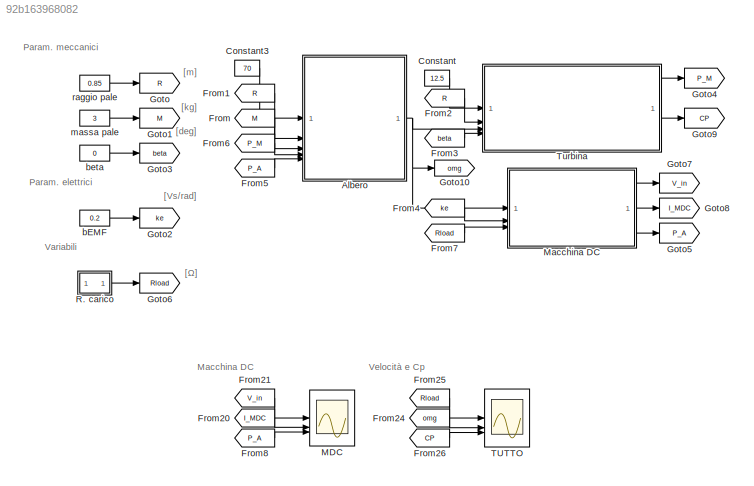
MODEL slx_92b163968082
KIND model
CONFIG AbsTol = auto
CONFIG EnableMultiTasking = off
CONFIG FixedStep = auto
CONFIG MaxStep = auto
CONFIG MinStep = auto
CONFIG RelTol = 1e-3
CONFIG SampleTimeConstraint = Unconstrained
CONFIG SolverName = VariableStepAuto
CONFIG StartTime = 0.0
CONFIG StopTime = 3000
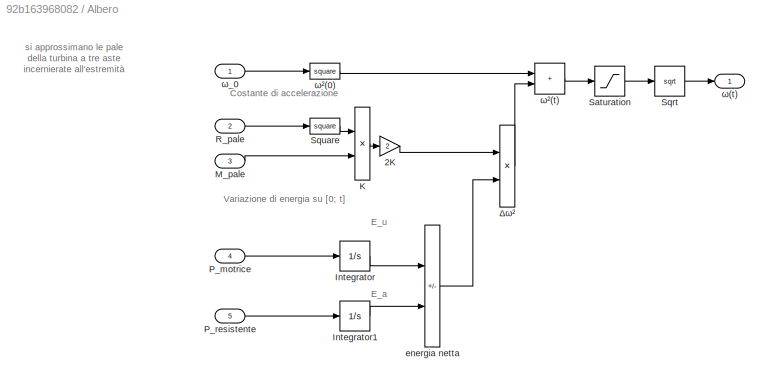
BLOCK [SubSystem] Albero
BLOCK [Gain] Albero/2K
  Gain = 2
BLOCK [Integrator] Albero/Integrator
BLOCK [Integrator] Albero/Integrator1
BLOCK [Product] Albero/K
  Inputs = //
  NameLocation = left
BLOCK [Inport] Albero/M_pale
  Port = 3
  Unit = kg
BLOCK [Inport] Albero/P_motrice
  Port = 4
  Unit = W
BLOCK [Inport] Albero/P_resistente
  Port = 5
  Unit = W
BLOCK [Inport] Albero/R_pale
  Port = 2
  Unit = m
BLOCK [Saturate] Albero/Saturation
  LowerLimit = 0
  UpperLimit = 10e6
BLOCK [Sqrt] Albero/Sqrt
BLOCK [Math] Albero/Square
  Operator = square
BLOCK [Sum] Albero/energia netta
  IconShape = rectangular
  Inputs = +-
BLOCK [Product] Albero/Δω²
BLOCK [Outport] Albero/ω(t)
  Unit = rad/s
BLOCK [Inport] Albero/ω_0
  Unit = rad/s
BLOCK [Math] Albero/ω²(0)
  NameLocation = top
  Operator = square
BLOCK [Sum] Albero/ω²(t)
  IconShape = rectangular
BLOCK [Constant] Constant
  Value = 12.5
BLOCK [Constant] Constant3
  Value = 70
BLOCK [From] From
  GotoTag = M
BLOCK [From] From1
  GotoTag = R
BLOCK [From] From2
  GotoTag = R
BLOCK [From] From20
  GotoTag = I_MDC
  NameLocation = left
BLOCK [From] From21
  GotoTag = V_in
BLOCK [From] From24
  GotoTag = omg
  NameLocation = left
BLOCK [From] From25
  GotoTag = Rload
BLOCK [From] From26
  GotoTag = CP
BLOCK [From] From3
  GotoTag = beta
BLOCK [From] From4
  GotoTag = ke
BLOCK [From] From5
  GotoTag = P_A
BLOCK [From] From6
  GotoTag = P_M
BLOCK [From] From7
  GotoTag = Rload
BLOCK [From] From8
  GotoTag = P_A
BLOCK [Goto] Goto
  GotoTag = R
BLOCK [Goto] Goto1
  GotoTag = M
BLOCK [Goto] Goto10
  GotoTag = omg
BLOCK [Goto] Goto2
  GotoTag = ke
BLOCK [Goto] Goto3
  GotoTag = beta
BLOCK [Goto] Goto4
  GotoTag = P_M
BLOCK [Goto] Goto5
  GotoTag = P_A
BLOCK [Goto] Goto6
  GotoTag = Rload
BLOCK [Goto] Goto7
  GotoTag = V_in
BLOCK [Goto] Goto8
  GotoTag = I_MDC
BLOCK [Goto] Goto9
  GotoTag = CP
BLOCK [Scope] MDC
  Floating = off
  NumInputPorts = 3
  ScopeSpecificationString = Simulink.scopes.TimeScopeBlockCfg('CurrentConfiguration', extmgr.ConfigurationSet(extmgr.Configuration('Core','General UI',true,'FigureColor',[1 1 1]),extmgr.Configuration('Core','Source UI',true),extmgr.Configuration('Sources','WiredSimulink',true,'DataLoggingVariableName','ScopeData1'),extmgr.Configuration('Visuals','Time Domain',true,'TimeAxisLabels','All','SerializedDisplays',{struct('MinYLimR...<+3358ch>
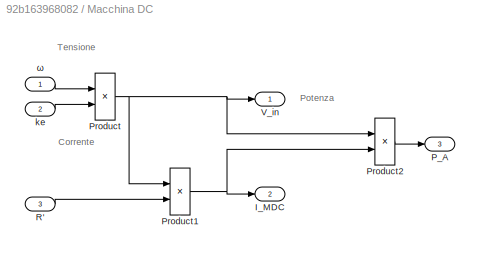
BLOCK [SubSystem] Macchina DC
BLOCK [Outport] Macchina DC/I_MDC
  NameLocation = right
  Port = 2
  Unit = A
BLOCK [Outport] Macchina DC/P_A
  NameLocation = right
  Port = 3
  Unit = W
BLOCK [Product] Macchina DC/Product
BLOCK [Product] Macchina DC/Product1
  Inputs = */
BLOCK [Product] Macchina DC/Product2
BLOCK [Inport] Macchina DC/R'
  NameLocation = left
  Port = 3
BLOCK [Outport] Macchina DC/V_in
  NameLocation = right
  Unit = V
BLOCK [Inport] Macchina DC/ke
  NameLocation = left
  Port = 2
BLOCK [Inport] Macchina DC/ω
  NameLocation = left
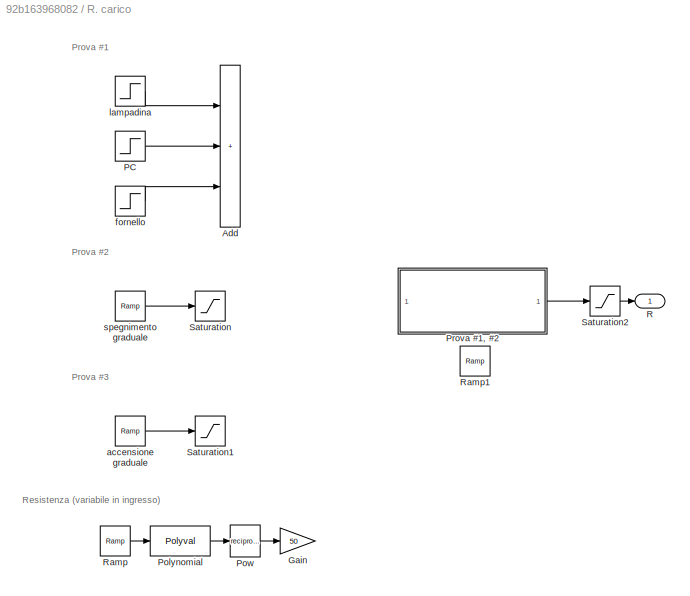
BLOCK [SubSystem] R. carico
BLOCK [Sum] R. carico/Add
  Commented = on
  IconShape = rectangular
  Inputs = +++
BLOCK [Gain] R. carico/Gain
  Commented = on
  Gain = 50
BLOCK [Step] R. carico/PC
  After = 90
  Commented = on
  SampleTime = 0
  Time = 1200
BLOCK [Polyval] R. carico/Polynomial
  Coefs = [10e-4 0 0]
  Commented = on
BLOCK [Math] R. carico/Pow
  Commented = on
  Operator = reciprocal
  RndMeth = Zero
  SignedPower = on
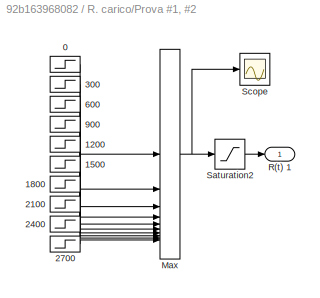
BLOCK [SubSystem] R. carico/Prova #1, #2
  NameLocation = top
BLOCK [Step] R. carico/Prova #1, #2/0
  After = 0
  Before = 1.6
  NameLocation = left
  SampleTime = 0
  Time = 300
BLOCK [Step] R. carico/Prova #1, #2/1200
  After = 0
  Before = 0.6
  NameLocation = left
  SampleTime = 0
  Time = 1500
BLOCK [Step] R. carico/Prova #1, #2/1500
  After = 0
  Before = 0.4
  NameLocation = left
  SampleTime = 0
  Time = 1800
BLOCK [Step] R. carico/Prova #1, #2/1800
  After = 0
  Before = 0.4
  NameLocation = left
  SampleTime = 0
  Time = 2100
BLOCK [Step] R. carico/Prova #1, #2/2100
  After = 0
  Before = 0.2
  NameLocation = left
  SampleTime = 0
  Time = 2400
BLOCK [Step] R. carico/Prova #1, #2/2400
  After = 0
  Before = 0.2
  NameLocation = left
  SampleTime = 0
  Time = 2700
BLOCK [Step] R. carico/Prova #1, #2/2700
  After = 1.6
  NameLocation = left
  SampleTime = 0
  Time = 2700
BLOCK [Step] R. carico/Prova #1, #2/300
  After = 0
  Before = 1.3
  NameLocation = left
  SampleTime = 0
  Time = 600
BLOCK [Step] R. carico/Prova #1, #2/600
  After = 0
  Before = 1
  NameLocation = left
  SampleTime = 0
  Time = 900
BLOCK [Step] R. carico/Prova #1, #2/900
  After = 0
  Before = 0.8
  NameLocation = left
  SampleTime = 0
  Time = 1200
BLOCK [MinMax] R. carico/Prova #1, #2/Max
  Function = max
  Inputs = 10
BLOCK [Outport] R. carico/Prova #1, #2/R(t) 1
BLOCK [Saturate] R. carico/Prova #1, #2/Saturation2
  LowerLimit = 0.15
  UpperLimit = 10e6
BLOCK [Scope] R. carico/Prova #1, #2/Scope
  Floating = off
  NumInputPorts = 1
  ScopeSpecificationString = Simulink.scopes.TimeScopeBlockCfg('CurrentConfiguration', extmgr.ConfigurationSet(extmgr.Configuration('Core','General UI',true),extmgr.Configuration('Core','Source UI',true),extmgr.Configuration('Sources','WiredSimulink',true,'DataLoggingVariableName','ScopeData1'),extmgr.Configuration('Visuals','Time Domain',true,'SerializedDisplays',{struct('MinYLimReal','0.025','MaxYLimReal','1.775','YLabelRea...<+1461ch>
BLOCK [Outport] R. carico/R
  Unit = Ω
BLOCK [Reference] R. carico/Ramp  REF=simulink/Sources/Ramp
  Commented = on
  SourceBlock = simulink/Sources/Ramp
  SourceType = Ramp
BLOCK [Reference] R. carico/Ramp1  REF=simulink/Sources/Ramp
  SourceBlock = simulink/Sources/Ramp
  SourceType = Ramp
BLOCK [Saturate] R. carico/Saturation
  Commented = on
  LowerLimit = 0
  UpperLimit = 1000
BLOCK [Saturate] R. carico/Saturation1
  Commented = on
  LowerLimit = 0
  UpperLimit = 200
BLOCK [Saturate] R. carico/Saturation2
  LowerLimit = 0.15
  UpperLimit = 10e6
BLOCK [Reference] R. carico/accensione graduale  REF=simulink/Sources/Ramp
  Commented = on
  SourceBlock = simulink/Sources/Ramp
  SourceType = Ramp
BLOCK [Step] R. carico/fornello
  After = 900
  Commented = on
  SampleTime = 0
  Time = 1500
BLOCK [Step] R. carico/lampadina
  After = 10
  Commented = on
  SampleTime = 0
  Time = 900
BLOCK [Reference] R. carico/spegnimento graduale  REF=simulink/Sources/Ramp
  Commented = on
  SourceBlock = simulink/Sources/Ramp
  SourceType = Ramp
BLOCK [Scope] TUTTO
  Floating = off
  NumInputPorts = 3
  ScopeSpecificationString = Simulink.scopes.TimeScopeBlockCfg('CurrentConfiguration', extmgr.ConfigurationSet(extmgr.Configuration('Core','General UI',true,'FigureColor',[1 1 1]),extmgr.Configuration('Core','Source UI',true),extmgr.Configuration('Sources','WiredSimulink',true,'DataLoggingVariableName','ScopeData2'),extmgr.Configuration('Visuals','Time Domain',true,'TimeAxisLabels','All','SerializedDisplays',{struct('MinYLimR...<+3271ch>
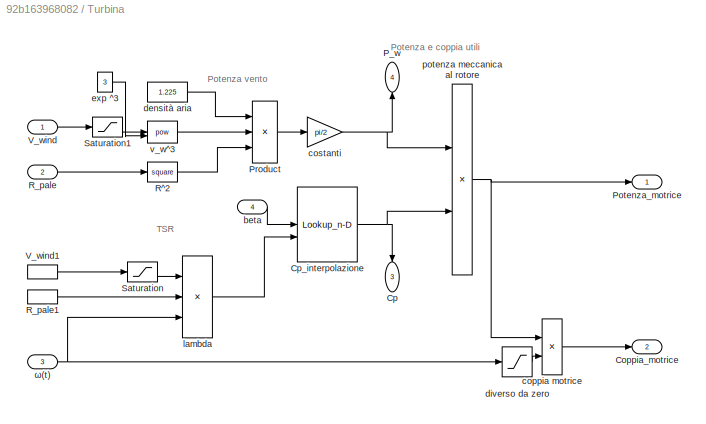
BLOCK [SubSystem] Turbina
BLOCK [Outport] Turbina/Coppia_motrice
  Port = 2
  Unit = N*m
BLOCK [Outport] Turbina/Cp
  Port = 3
  Unit = 1
BLOCK [Lookup_n-D] Turbina/Cp_interpolazione
  BreakpointsForDimension1 = pitch
  BreakpointsForDimension2 = TSR
  InputPortMap = u0,u1
  InternalRulePriority = Speed
  InterpMethod = Cubic spline
  RndMeth = Simplest
  Table = cp
BLOCK [Outport] Turbina/P_w
  NameLocation = top
  Port = 4
  Unit = W
BLOCK [Outport] Turbina/Potenza_motrice
  Unit = W
BLOCK [Product] Turbina/Product
  Inputs = ***
BLOCK [Math] Turbina/R^2
  Operator = square
BLOCK [Inport] Turbina/R_pale
  NameLocation = left
  Port = 2
  Unit = m
BLOCK [InportShadow] Turbina/R_pale1
  NameLocation = left
  Port = 2
  Unit = m
BLOCK [Saturate] Turbina/Saturation
  LowerLimit = 1
  UpperLimit = 15
BLOCK [Saturate] Turbina/Saturation1
  LowerLimit = 1
  UpperLimit = 15
BLOCK [Inport] Turbina/V_wind
  NameLocation = left
  Unit = m/s
BLOCK [InportShadow] Turbina/V_wind1
  NameLocation = left
  Unit = m/s
BLOCK [Inport] Turbina/beta
  Port = 4
  Unit = deg
BLOCK [Product] Turbina/coppia motrice
  Inputs = */
  NameLocation = top
BLOCK [Gain] Turbina/costanti
  Gain = pi/2
BLOCK [Constant] Turbina/densità aria
  NameLocation = top
  Value = 1.225
BLOCK [Saturate] Turbina/diverso da zero
  LowerLimit = 0.1
  UpperLimit = 10e3
BLOCK [Constant] Turbina/exp ^3
  NameLocation = top
  Value = 3
BLOCK [Product] Turbina/lambda
  Inputs = /**
  NameLocation = right
BLOCK [Product] Turbina/potenza meccanica al rotore
BLOCK [Math] Turbina/v_w^3
  Operator = pow
BLOCK [Inport] Turbina/ω(t)
  NameLocation = left
  Port = 3
  Unit = rad/s
BLOCK [Constant] bEMF
  Value = 0.2
BLOCK [Constant] beta
  Value = 0
BLOCK [Constant] massa pale
  Value = 3
BLOCK [Constant] raggio pale
  Value = 0.85
ANNOTATION (root): [Vs/rad]
ANNOTATION (root): [deg]
ANNOTATION (root): [m]
ANNOTATION (root): [Ω]
ANNOTATION (root): [kg]
ANNOTATION (root): Macchina DC
ANNOTATION (root): Param. elettrici
ANNOTATION (root): Param. meccanici
ANNOTATION (root): Variabili
ANNOTATION (root): Velocità e Cp
ANNOTATION Albero: si approssimano le pale della turbina a tre aste incernierate all'estremità
ANNOTATION Albero: Costante di accelerazione
ANNOTATION Albero: E_a
ANNOTATION Albero: E_u
ANNOTATION Albero: Variazione di energia su [0; t]
ANNOTATION Macchina DC: Corrente
ANNOTATION Macchina DC: Potenza
ANNOTATION Macchina DC: Tensione
ANNOTATION R. carico: Prova #1
ANNOTATION R. carico: Prova #2
ANNOTATION R. carico: Prova #3
ANNOTATION R. carico: Resistenza (variabile in ingresso)
ANNOTATION Turbina: Potenza e coppia utili
ANNOTATION Turbina: Potenza vento
ANNOTATION Turbina: TSR
LINE Albero/2K:1 -> Albero/Δω²:1
LINE Albero/Integrator1:1 -> Albero/energia netta:2
LINE Albero/Integrator:1 -> Albero/energia netta:1
LINE Albero/K:1 -> Albero/2K:1
LINE Albero/M_pale:1 -> Albero/K:2
LINE Albero/P_motrice:1 -> Albero/Integrator:1
LINE Albero/P_resistente:1 -> Albero/Integrator1:1
LINE Albero/R_pale:1 -> Albero/Square:1
LINE Albero/Saturation:1 -> Albero/Sqrt:1
LINE Albero/Sqrt:1 -> Albero/ω(t):1
LINE Albero/Square:1 -> Albero/K:1
LINE Albero/energia netta:1 -> Albero/Δω²:2
LINE Albero/Δω²:1 -> Albero/ω²(t):2
LINE Albero/ω_0:1 -> Albero/ω²(0):1
LINE Albero/ω²(0):1 -> Albero/ω²(t):1
LINE Albero/ω²(t):1 -> Albero/Saturation:1
NET Albero:1 -> Goto10:1, Macchina DC:1, Turbina:3
LINE Constant3:1 -> Albero:1
LINE Constant:1 -> Turbina:1
LINE From1:1 -> Albero:2
LINE From20:1 -> MDC:2
LINE From21:1 -> MDC:1
LINE From24:1 -> TUTTO:2
LINE From25:1 -> TUTTO:1
LINE From26:1 -> TUTTO:3
LINE From2:1 -> Turbina:2
LINE From3:1 -> Turbina:4
LINE From4:1 -> Macchina DC:2
LINE From5:1 -> Albero:5
LINE From6:1 -> Albero:4
LINE From7:1 -> Macchina DC:3
LINE From8:1 -> MDC:3
LINE From:1 -> Albero:3
NET Macchina DC/Product1:1 -> Macchina DC/I_MDC:1, Macchina DC/Product2:2
LINE Macchina DC/Product2:1 -> Macchina DC/P_A:1
NET Macchina DC/Product:1 -> Macchina DC/Product1:1, Macchina DC/Product2:1, Macchina DC/V_in:1
LINE Macchina DC/R':1 -> Macchina DC/Product1:2
LINE Macchina DC/ke:1 -> Macchina DC/Product:2
LINE Macchina DC/ω:1 -> Macchina DC/Product:1
LINE Macchina DC:1 -> Goto7:1
LINE Macchina DC:2 -> Goto8:1
LINE Macchina DC:3 -> Goto5:1
LINE R. carico/PC:1 -> R. carico/Add:2
LINE R. carico/Polynomial:1 -> R. carico/Pow:1
LINE R. carico/Pow:1 -> R. carico/Gain:1
LINE R. carico/Prova #1, #2/0:1 -> R. carico/Prova #1, #2/Max:1
LINE R. carico/Prova #1, #2/1200:1 -> R. carico/Prova #1, #2/Max:5
LINE R. carico/Prova #1, #2/1500:1 -> R. carico/Prova #1, #2/Max:6
LINE R. carico/Prova #1, #2/1800:1 -> R. carico/Prova #1, #2/Max:7
LINE R. carico/Prova #1, #2/2100:1 -> R. carico/Prova #1, #2/Max:8
LINE R. carico/Prova #1, #2/2400:1 -> R. carico/Prova #1, #2/Max:9
LINE R. carico/Prova #1, #2/2700:1 -> R. carico/Prova #1, #2/Max:10
LINE R. carico/Prova #1, #2/300:1 -> R. carico/Prova #1, #2/Max:2
LINE R. carico/Prova #1, #2/600:1 -> R. carico/Prova #1, #2/Max:3
LINE R. carico/Prova #1, #2/900:1 -> R. carico/Prova #1, #2/Max:4
NET R. carico/Prova #1, #2/Max:1 -> R. carico/Prova #1, #2/Saturation2:1, R. carico/Prova #1, #2/Scope:1
LINE R. carico/Prova #1, #2/Saturation2:1 -> R. carico/Prova #1, #2/R(t) 1:1
LINE R. carico/Prova #1, #2:1 -> R. carico/Saturation2:1
LINE R. carico/Ramp:1 -> R. carico/Polynomial:1
LINE R. carico/Saturation2:1 -> R. carico/R:1
LINE R. carico/accensione graduale:1 -> R. carico/Saturation1:1
LINE R. carico/fornello:1 -> R. carico/Add:3
LINE R. carico/lampadina:1 -> R. carico/Add:1
LINE R. carico/spegnimento graduale:1 -> R. carico/Saturation:1
LINE R. carico:1 -> Goto6:1
NET Turbina/Cp_interpolazione:1 -> Turbina/Cp:1, Turbina/potenza meccanica al rotore:2
LINE Turbina/Product:1 -> Turbina/costanti:1
LINE Turbina/R^2:1 -> Turbina/Product:3
LINE Turbina/R_pale1:1 -> Turbina/lambda:2
LINE Turbina/R_pale:1 -> Turbina/R^2:1
LINE Turbina/Saturation1:1 -> Turbina/v_w^3:1
LINE Turbina/Saturation:1 -> Turbina/lambda:1
LINE Turbina/V_wind1:1 -> Turbina/Saturation:1
LINE Turbina/V_wind:1 -> Turbina/Saturation1:1
LINE Turbina/beta:1 -> Turbina/Cp_interpolazione:1
LINE Turbina/coppia motrice:1 -> Turbina/Coppia_motrice:1
NET Turbina/costanti:1 -> Turbina/P_w:1, Turbina/potenza meccanica al rotore:1
LINE Turbina/densità aria:1 -> Turbina/Product:1
LINE Turbina/diverso da zero:1 -> Turbina/coppia motrice:2
LINE Turbina/exp ^3:1 -> Turbina/v_w^3:2
LINE Turbina/lambda:1 -> Turbina/Cp_interpolazione:2
NET Turbina/potenza meccanica al rotore:1 -> Turbina/Potenza_motrice:1, Turbina/coppia motrice:1
LINE Turbina/v_w^3:1 -> Turbina/Product:2
NET Turbina/ω(t):1 -> Turbina/diverso da zero:1, Turbina/lambda:3
LINE Turbina:1 -> Goto4:1
LINE Turbina:3 -> Goto9:1
LINE bEMF:1 -> Goto2:1
LINE beta:1 -> Goto3:1
LINE massa pale:1 -> Goto1:1
LINE raggio pale:1 -> Goto:1
note: NET lines group one-source signal fan-out (src -> all destinations, sorted); 1:1 wires keep LINE
